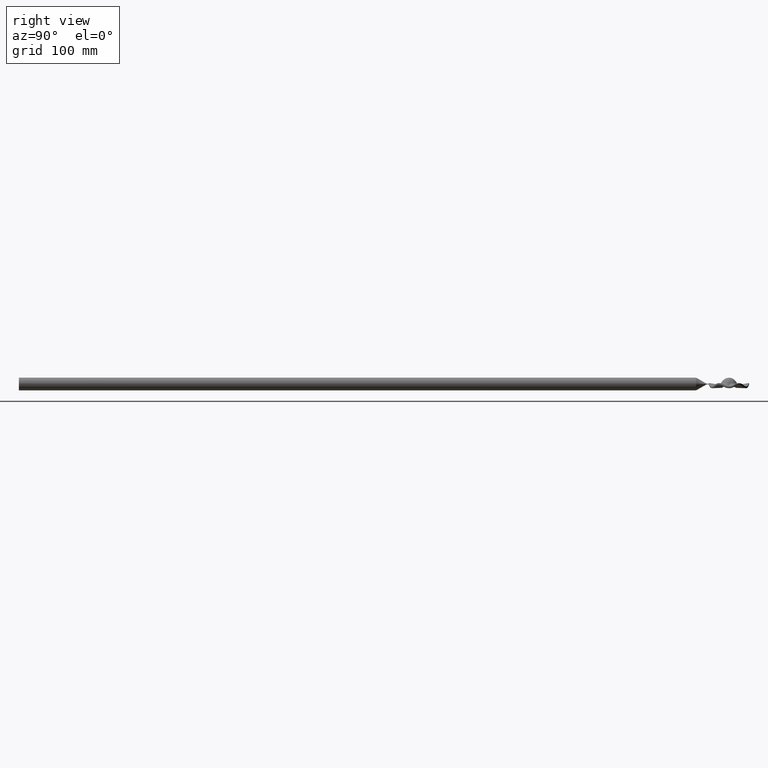
[diagram: clean part render]
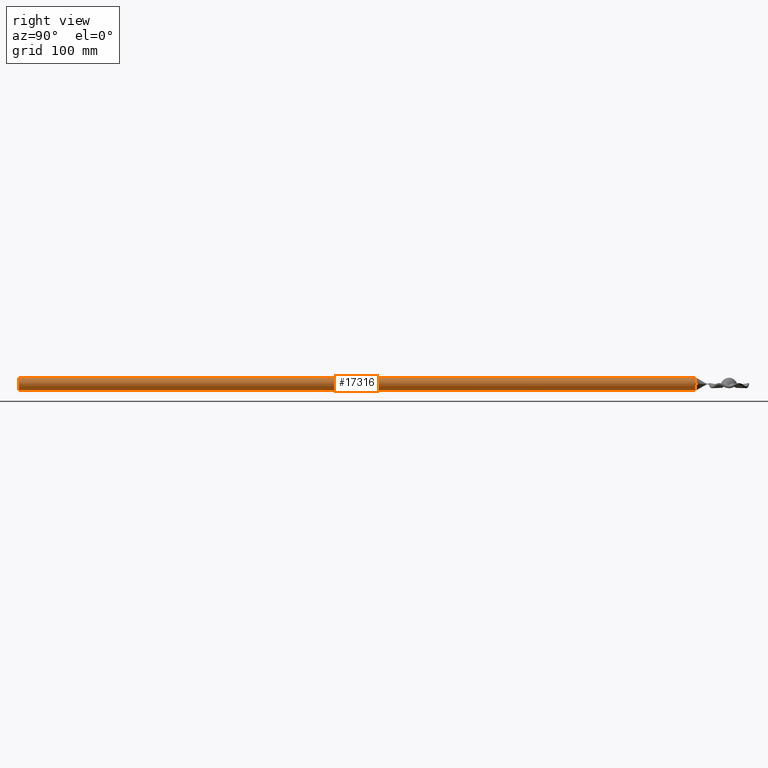
[diagram: same view with one face highlighted and labeled with its STEP entity id]
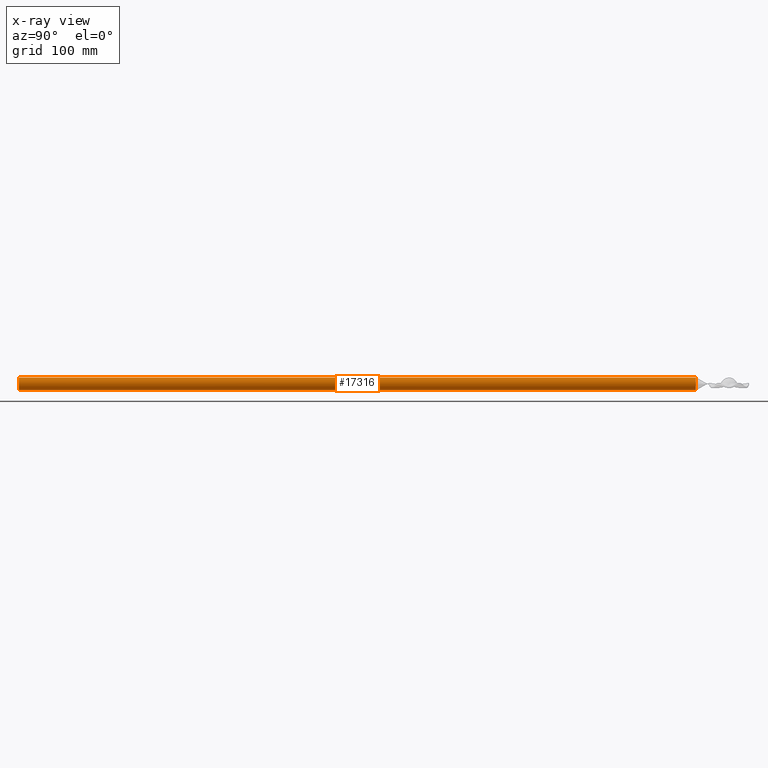
[diagram: x-ray of the same camera — body ghosted, the highlighted face saturated]
A machine part, right view. The second image highlights one B-rep face of the part: STEP entity #17316.
The next image is the same camera in x-ray: the body ghosted, the highlighted face saturated — about 0% of this face is hidden behind the body in this view.
In plain terms, the highlighted cylindrical surface (bore or boss wall) has radius 6 mm, axis along (-0, 1, 0).
Its self-contained STEP definition (entity closure, byte-faithful):
#256 = EDGE_CURVE ( 'NONE', #14746, #14746, #19793, .T. ) ;
#423 = CYLINDRICAL_SURFACE ( 'NONE', #21695, 6.000000000000000888 ) ;
#683 = CARTESIAN_POINT ( 'NONE',  ( -5.980824593588182303, -31.29264283208015129, -0.5316251975531532947 ) ) ;
#1008 = CARTESIAN_POINT ( 'NONE',  ( -0.1872538489531399564, -31.53400665994032082, 4.989013771375117479 ) ) ;
#1171 = CARTESIAN_POINT ( 'NONE',  ( 5.690170302778487788, -31.36102079688871669, 0.9283042461900062881 ) ) ;
#1223 = CARTESIAN_POINT ( 'NONE',  ( -2.870838083351453740, -31.50547813644294948, 4.270825271378800636 ) ) ;
#1248 = CARTESIAN_POINT ( 'NONE',  ( 2.525389533038719492, -31.51197191574037149, 4.434906835200018271 ) ) ;
#1557 = CARTESIAN_POINT ( 'NONE',  ( 3.501959894299997877, -31.48940342536948123, -5.897136468126405795 ) ) ;
#1628 = CARTESIAN_POINT ( 'NONE',  ( 5.886382432888412453, -31.32678016191459847, -2.230739715240499077 ) ) ;
#2280 = CARTESIAN_POINT ( 'NONE',  ( 0.3694900830817235415, -31.53400961817193249, 4.989168967303750257 ) ) ;
#2300 = CARTESIAN_POINT ( 'NONE',  ( 0.000000000000000000, -671.0000000000000000, -7.010934263533311395 ) ) ;
#2354 = B_SPLINE_CURVE_WITH_KNOTS ( 'NONE', 3,
 ( #8994, #21372, #16150, #10852 ),
 .UNSPECIFIED., .F., .F.,
 ( 4, 4 ),
 ( 2.085797838004726016E-05, 0.0009806501438677139772 ),
 .UNSPECIFIED. ) ;
#2741 = CARTESIAN_POINT ( 'NONE',  ( 5.038314140071865843, -31.42111225251553819, 2.268455868491442651 ) ) ;
#2809 = CARTESIAN_POINT ( 'NONE',  ( -5.950807246862674482, -31.31045227321516933, -1.864800161988724669 ) ) ;
#2886 = CARTESIAN_POINT ( 'NONE',  ( -1.837223403350540130, -31.52334784121414657, -6.734768190893050566 ) ) ;
#2899 = CARTESIAN_POINT ( 'NONE',  ( 3.794509748292029805, -31.48002512051592561, 3.651635424343754099 ) ) ;
#2965 = CARTESIAN_POINT ( 'NONE',  ( -5.886300004217281945, -31.32682303456855166, -2.231653859741960400 ) ) ;
#2971 = CARTESIAN_POINT ( 'NONE',  ( 3.499530197799628262, -31.48948423986999856, 3.877177297349454044 ) ) ;
#3034 = CARTESIAN_POINT ( 'NONE',  ( -5.683140580595232194, -31.36073365908485044, 0.9221229411716668212 ) ) ;
#3117 = CARTESIAN_POINT ( 'NONE',  ( -5.740187679845367263, -31.35231371782963450, 0.7453690336535480077 ) ) ;
#3188 = FACE_OUTER_BOUND ( 'NONE', #8364, .T. ) ;
#3271 = CARTESIAN_POINT ( 'NONE',  ( 5.232351433599151669, -31.40704467463310223, -3.971052694575021746 ) ) ;
#3297 = VERTEX_POINT ( 'NONE', #17526 ) ;
#3498 = CARTESIAN_POINT ( 'NONE',  ( 4.597096388880111739, -31.44678382325125199, -4.884511403890280157 ) ) ;
#4026 = FACE_OUTER_BOUND ( 'NONE', #20088, .T. ) ;
#4129 = CARTESIAN_POINT ( 'NONE',  ( 5.980824593588172533, -31.29264283208015129, -0.5316251975530391638 ) ) ;
#4269 = CARTESIAN_POINT ( 'NONE',  ( -5.980824593588184079, -31.29264283208014419, -1.490243329513442072 ) ) ;
#4533 = EDGE_CURVE ( 'NONE', #16451, #14569, #6743, .T. ) ;
#4534 = CARTESIAN_POINT ( 'NONE',  ( 4.593560343720461958, -31.44696950271779556, 2.866979141981076395 ) ) ;
#4613 = CARTESIAN_POINT ( 'NONE',  ( 5.950807246862652278, -31.31045227321516933, -0.1570683650777589535 ) ) ;
#4761 = CARTESIAN_POINT ( 'NONE',  ( 5.230869636126682209, -31.40714947506118193, 1.951561300420822542 ) ) ;
#4911 = CARTESIAN_POINT ( 'NONE',  ( -3.499530197799721520, -31.48948423986999856, -5.899045824416008443 ) ) ;
#5030 = DIRECTION ( 'NONE',  ( 0.000000000000000000, 0.000000000000000000, 1.000000000000000000 ) ) ;
#5144 = CARTESIAN_POINT ( 'NONE',  ( 3.796623769147341676, -31.47995943904208360, -5.671886281056803369 ) ) ;
#5555 = CARTESIAN_POINT ( 'NONE',  ( -1.839948646969142620, -31.52331605911751922, 4.712066811510623232 ) ) ;
#6302 = CARTESIAN_POINT ( 'NONE',  ( 4.340421073411850017, -31.45903133705829546, 3.148224933909795631 ) ) ;
#6530 = CARTESIAN_POINT ( 'NONE',  ( -4.344110695158198254, -31.45887366500201665, 3.144487258084326609 ) ) ;
#6595 = CARTESIAN_POINT ( 'NONE',  ( -5.950809890247490408, -31.31045070488181636, -0.1571013492671436695 ) ) ;
#6605 = CARTESIAN_POINT ( 'NONE',  ( -5.230869636126747935, -31.40714947506117483, -3.973429827487333643 ) ) ;
#6676 = CARTESIAN_POINT ( 'NONE',  ( -4.597096388880149043, -31.44678382325123778, 2.862642876823612070 ) ) ;
#6743 = B_SPLINE_CURVE_WITH_KNOTS ( 'NONE', 3,
 ( #11547, #7854, #18480, #4269 ),
 .UNSPECIFIED., .F., .F.,
 ( 4, 4 ),
 ( 2.085797838002507806E-05, 0.0009806501438675120988 ),
 .UNSPECIFIED. ) ;
#6998 = DIRECTION ( 'NONE',  ( 0.000000000000000000, 0.000000000000000000, -1.000000000000000000 ) ) ;
#7004 = CARTESIAN_POINT ( 'NONE',  ( 2.870838083351383574, -31.50547813644297790, -6.292693798445463393 ) ) ;
#7854 = CARTESIAN_POINT ( 'NONE',  ( -6.006385932403994765, -31.29386200887942948, -0.8505799069159531989 ) ) ;
#8263 = CARTESIAN_POINT ( 'NONE',  ( -0.3694900830818155790, -31.53400961817193249, -7.011037494370365053 ) ) ;
#8342 = CARTESIAN_POINT ( 'NONE',  ( 2.858715246617761885, -31.50523856403768974, 4.267562180056444276 ) ) ;
#8364 = EDGE_LOOP ( 'NONE', ( #13919 ) ) ;
#8633 = CARTESIAN_POINT ( 'NONE',  ( 1.839948646969070900, -31.52331605911752632, -6.733935338577266450 ) ) ;
#8665 = ORIENTED_EDGE ( 'NONE', *, *, #18004, .T. ) ;
#8800 = CARTESIAN_POINT ( 'NONE',  ( 5.740187679845357493, -31.35231371782963450, -2.767237560720208656 ) ) ;
#8994 = CARTESIAN_POINT ( 'NONE',  ( 5.980824593588178750, -31.29264283208013708, -1.490243329513506909 ) ) ;
#9541 = VERTEX_POINT ( 'NONE', #4129 ) ;
#9966 = CARTESIAN_POINT ( 'NONE',  ( -4.593560343720549000, -31.44696950271778135, -4.888847669047596156 ) ) ;
#10032 = CARTESIAN_POINT ( 'NONE',  ( -0.7397846592634365059, -31.53294532206814793, -6.977004780480611679 ) ) ;
#10121 = CARTESIAN_POINT ( 'NONE',  ( 1.837223403350443762, -31.52334784121415368, 4.712899663826461527 ) ) ;
#10271 = CARTESIAN_POINT ( 'NONE',  ( -0.9321636357055937960, -31.53143343081302774, 4.919160688444326190 ) ) ;
#10337 = CARTESIAN_POINT ( 'NONE',  ( 5.552083568024987592, -31.37663715455941826, -3.293293803381722284 ) ) ;
#10462 = B_SPLINE_CURVE_WITH_KNOTS ( 'NONE', 3,
 ( #10558, #4613, #13364, #1171, #13590, #4761, #2741, #4534, #6302, #2899, #2971, #15348, #8342, #1248, #20662, #10121, #22433, #12362, #2280, #1008, #16919, #18770, #10271, #15582, #5555, #18425, #1223, #19099, #22353, #6530, #6676, #19108, #13647, #17334, #15559, #3034, #3117, #17174, #6595, #18952 ),
 .UNSPECIFIED., .F., .F.,
 ( 4, 2, 2, 2, 2, 2, 2, 2, 2, 2, 2, 2, 2, 2, 2, 2, 2, 2, 2, 4 ),
 ( 2.074007705039311247E-05, 0.001138002531956935036, 0.002255264986863476668, 0.003372527441770018734, 0.004489789896676560366, 0.005607052351583102431, 0.006165683579036375199, 0.006724314806489647099, 0.007841577261396191767, 0.008958839716302737302, 0.009517470943756010937, 0.01007610217120928284, 0.01119336462611582837, 0.01231062708102237564, 0.01342788953592891771, 0.01454515199083546151, 0.01566241444574200184, 0.01622104567319527374, 0.01677967690064854564, 0.01789693935555508597 ),
 .UNSPECIFIED. ) ;
#10558 = CARTESIAN_POINT ( 'NONE',  ( 5.980824593588172533, -31.29264283208015129, -0.5316251975530391638 ) ) ;
#10852 = CARTESIAN_POINT ( 'NONE',  ( 5.980824593588172533, -31.29264283208015129, -0.5316251975530391638 ) ) ;
#11547 = CARTESIAN_POINT ( 'NONE',  ( -5.980824593588182303, -31.29264283208015129, -0.5316251975531532947 ) ) ;
#11654 = CARTESIAN_POINT ( 'NONE',  ( -2.858715246617866690, -31.50523856403769685, -6.289430707123010222 ) ) ;
#11815 = CARTESIAN_POINT ( 'NONE',  ( 0.3730535375399496867, -31.53381541976660429, -7.002239515318929186 ) ) ;
#12121 = CARTESIAN_POINT ( 'NONE',  ( 0.000000000000000000, -671.0000000000000000, -1.010934263533310729 ) ) ;
#12199 = CARTESIAN_POINT ( 'NONE',  ( 5.683140580595217983, -31.36073365908484334, -2.943991468238332132 ) ) ;
#12264 = DIRECTION ( 'NONE',  ( 0.000000000000000000, -1.000000000000000000, 0.000000000000000000 ) ) ;
#12270 = CARTESIAN_POINT ( 'NONE',  ( 5.477618432932966464, -31.38444777390030893, -3.466671823984977863 ) ) ;
#12362 = CARTESIAN_POINT ( 'NONE',  ( 0.7397846592633384732, -31.53294532206814793, 4.955136253414003988 ) ) ;
#12605 = ORIENTED_EDGE ( 'NONE', *, *, #22914, .T. ) ;
#12905 = ORIENTED_EDGE ( 'NONE', *, *, #15773, .T. ) ;
#13364 = CARTESIAN_POINT ( 'NONE',  ( 5.886300004217251747, -31.32682303456855877, 0.2097853326754756387 ) ) ;
#13506 = CARTESIAN_POINT ( 'NONE',  ( -2.355633855123462794, -31.51513994027819976, -6.532293272513755689 ) ) ;
#13590 = CARTESIAN_POINT ( 'NONE',  ( 5.556744423928746457, -31.37718907279948866, 1.282745863192470637 ) ) ;
#13621 = CARTESIAN_POINT ( 'NONE',  ( 0.000000000000000000, -32.00000000000000000, -1.010934263533310729 ) ) ;
#13647 = CARTESIAN_POINT ( 'NONE',  ( -5.232351433599173873, -31.40704467463310934, 1.949184167508358989 ) ) ;
#13773 = DIRECTION ( 'NONE',  ( -0.000000000000000000, 1.000000000000000000, 0.000000000000000000 ) ) ;
#13880 = CARTESIAN_POINT ( 'NONE',  ( 5.950809890247486855, -31.31045070488178084, -1.864767177799508735 ) ) ;
#13890 = B_SPLINE_CURVE_WITH_KNOTS ( 'NONE', 3,
 ( #18809, #2809, #2965, #20656, #22201, #6605, #22511, #9966, #15338, #15488, #4911, #18665, #11654, #16956, #13506, #2886, #15259, #10032, #8263, #20590, #11815, #19115, #13957, #22582, #8633, #22890, #7004, #1557, #5144, #17486, #3498, #15567, #3271, #12270, #10337, #12199, #8800, #1628, #13880, #20949 ),
 .UNSPECIFIED., .F., .F.,
 ( 4, 2, 2, 2, 2, 2, 2, 2, 2, 2, 2, 2, 2, 2, 2, 2, 2, 2, 2, 4 ),
 ( 2.074007705044541845E-05, 0.001138002531956980139, 0.002255264986863514832, 0.003372527441770049959, 0.004489789896676583784, 0.005607052351583118911, 0.006165683579036386475, 0.006724314806489655773, 0.007841577261396193502, 0.008958839716302730363, 0.009517470943755998794, 0.01007610217120926376, 0.01119336462611580235, 0.01231062708102233748, 0.01342788953592887434, 0.01454515199083541120, 0.01566241444574194633, 0.01622104567319521476, 0.01677967690064847972, 0.01789693935555501658 ),
 .UNSPECIFIED. ) ;
#13919 = ORIENTED_EDGE ( 'NONE', *, *, #256, .F. ) ;
#13957 = CARTESIAN_POINT ( 'NONE',  ( 0.9321636357054987609, -31.53143343081302064, -6.941029215510963191 ) ) ;
#14569 = VERTEX_POINT ( 'NONE', #21876 ) ;
#14746 = VERTEX_POINT ( 'NONE', #2300 ) ;
#15259 = CARTESIAN_POINT ( 'NONE',  ( -1.478569222874507538, -31.52710709362208163, -6.838035756423033185 ) ) ;
#15338 = CARTESIAN_POINT ( 'NONE',  ( -4.340421073411937947, -31.45903133705830257, -5.170093460976326938 ) ) ;
#15348 = CARTESIAN_POINT ( 'NONE',  ( 3.023117060075444673, -31.50158991494616245, 4.175186618235419367 ) ) ;
#15488 = CARTESIAN_POINT ( 'NONE',  ( -3.794509748292119955, -31.48002512051589008, -5.673503951410304502 ) ) ;
#15559 = CARTESIAN_POINT ( 'NONE',  ( -5.552083568025008020, -31.37663715455941826, 1.271425276315050201 ) ) ;
#15567 = CARTESIAN_POINT ( 'NONE',  ( 5.039657876854499285, -31.42101400900816088, -4.288089059268329173 ) ) ;
#15582 = CARTESIAN_POINT ( 'NONE',  ( -1.483267525632043782, -31.52705274007536929, 4.814847931177954621 ) ) ;
#15773 = EDGE_CURVE ( 'NONE', #9541, #16451, #10462, .T. ) ;
#16150 = CARTESIAN_POINT ( 'NONE',  ( 6.006384077954278311, -31.29386192042937154, -0.8505567670688388704 ) ) ;
#16451 = VERTEX_POINT ( 'NONE', #683 ) ;
#16919 = CARTESIAN_POINT ( 'NONE',  ( -0.3730535375400403364, -31.53381541976660429, 4.980370988252304620 ) ) ;
#16956 = CARTESIAN_POINT ( 'NONE',  ( -2.525389533038819412, -31.51197191574039280, -6.456775362266593099 ) ) ;
#17174 = CARTESIAN_POINT ( 'NONE',  ( -5.886382432888417782, -31.32678016191459847, 0.2088711881738437581 ) ) ;
#17316 = ADVANCED_FACE ( 'NONE', ( #4026, #3188 ), #423, .T. ) ;
#17334 = CARTESIAN_POINT ( 'NONE',  ( -5.477618432932989556, -31.38444777390031604, 1.444803296918307556 ) ) ;
#17406 = ORIENTED_EDGE ( 'NONE', *, *, #4533, .T. ) ;
#17486 = CARTESIAN_POINT ( 'NONE',  ( 4.344110695158151181, -31.45887366500203086, -5.166355785150996915 ) ) ;
#17526 = CARTESIAN_POINT ( 'NONE',  ( 5.980824593588178750, -31.29264283208013708, -1.490243329513506909 ) ) ;
#18004 = EDGE_CURVE ( 'NONE', #14569, #3297, #13890, .T. ) ;
#18425 = CARTESIAN_POINT ( 'NONE',  ( -2.532227999009469599, -31.51233248275681831, 4.441218860643421529 ) ) ;
#18480 = CARTESIAN_POINT ( 'NONE',  ( -6.006384077954277423, -31.29386192042935733, -1.171311759997702096 ) ) ;
#18665 = CARTESIAN_POINT ( 'NONE',  ( -3.023117060075550366, -31.50158991494615535, -6.197055145301976431 ) ) ;
#18770 = CARTESIAN_POINT ( 'NONE',  ( -0.7450991292659224774, -31.53253492429049842, 4.945552523954108715 ) ) ;
#18809 = CARTESIAN_POINT ( 'NONE',  ( -5.980824593588184079, -31.29264283208014419, -1.490243329513442072 ) ) ;
#18952 = CARTESIAN_POINT ( 'NONE',  ( -5.980824593588182303, -31.29264283208015129, -0.5316251975531532947 ) ) ;
#19099 = CARTESIAN_POINT ( 'NONE',  ( -3.501959894300049392, -31.48940342536948123, 3.875267941059746146 ) ) ;
#19108 = CARTESIAN_POINT ( 'NONE',  ( -5.039657876854525043, -31.42101400900815378, 2.266220532201666860 ) ) ;
#19115 = CARTESIAN_POINT ( 'NONE',  ( 0.7450991292658282195, -31.53253492429049132, -6.967421051020741274 ) ) ;
#19793 = CIRCLE ( 'NONE', #20138, 6.000000000000000888 ) ;
#20088 = EDGE_LOOP ( 'NONE', ( #12905, #17406, #8665, #12605 ) ) ;
#20138 = AXIS2_PLACEMENT_3D ( 'NONE', #12121, #12264, #6998 ) ;
#20590 = CARTESIAN_POINT ( 'NONE',  ( 0.1872538489530503059, -31.53400665994032792, -7.010882298441741156 ) ) ;
#20656 = CARTESIAN_POINT ( 'NONE',  ( -5.690170302778537526, -31.36102079688873800, -2.950172773256488412 ) ) ;
#20662 = CARTESIAN_POINT ( 'NONE',  ( 2.355633855123365095, -31.51513994027820686, 4.510424745447179085 ) ) ;
#20949 = CARTESIAN_POINT ( 'NONE',  ( 5.980824593588178750, -31.29264283208013708, -1.490243329513506909 ) ) ;
#21372 = CARTESIAN_POINT ( 'NONE',  ( 6.006385932403999206, -31.29386200887943659, -1.171288620150647830 ) ) ;
#21695 = AXIS2_PLACEMENT_3D ( 'NONE', #13621, #13773, #5030 ) ;
#21876 = CARTESIAN_POINT ( 'NONE',  ( -5.980824593588184079, -31.29264283208014419, -1.490243329513442072 ) ) ;
#22201 = CARTESIAN_POINT ( 'NONE',  ( -5.556744423928802412, -31.37718907279949576, -3.304614390258957535 ) ) ;
#22353 = CARTESIAN_POINT ( 'NONE',  ( -3.796623769147389638, -31.47995943904208360, 3.650017753990143277 ) ) ;
#22433 = CARTESIAN_POINT ( 'NONE',  ( 1.478569222874388966, -31.52710709362208874, 4.816167229356445034 ) ) ;
#22511 = CARTESIAN_POINT ( 'NONE',  ( -5.038314140071935121, -31.42111225251553819, -4.290324395557957082 ) ) ;
#22582 = CARTESIAN_POINT ( 'NONE',  ( 1.483267525631964734, -31.52705274007537639, -6.836716458244594286 ) ) ;
#22890 = CARTESIAN_POINT ( 'NONE',  ( 2.532227999009399433, -31.51233248275682541, -6.463087387710074516 ) ) ;
#22914 = EDGE_CURVE ( 'NONE', #3297, #9541, #2354, .T. ) ;